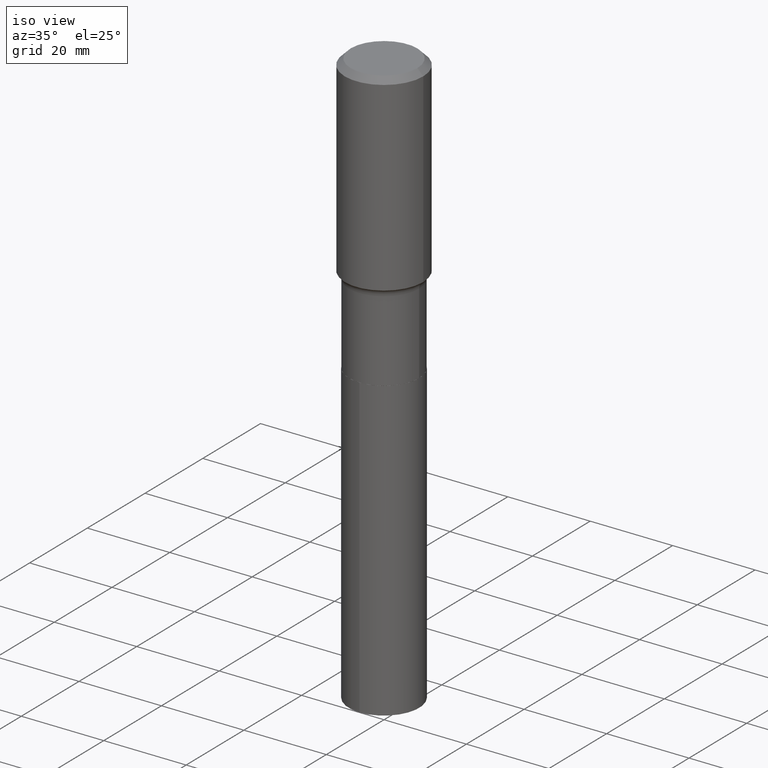
[diagram: clean part render]
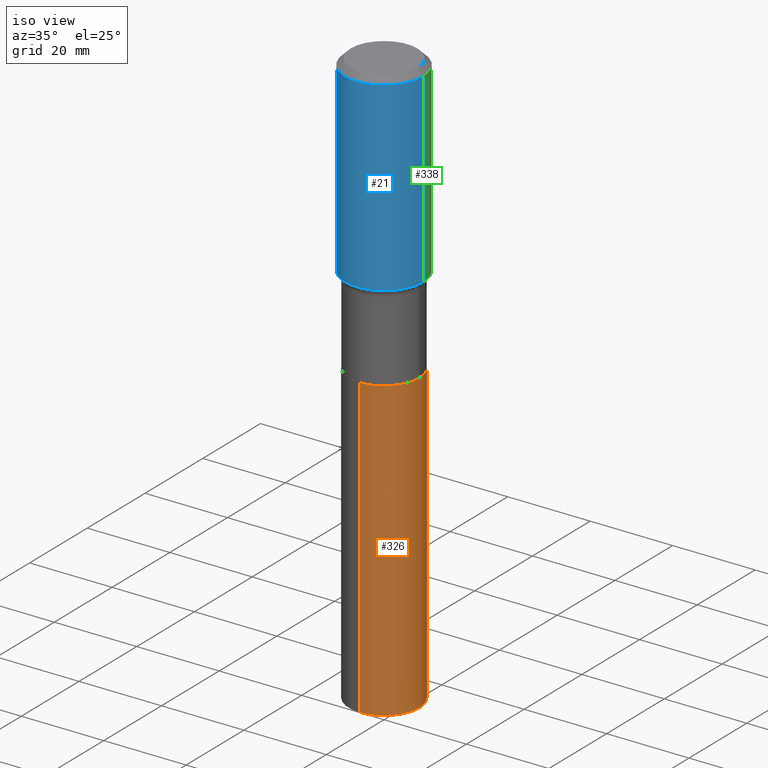
[diagram: same view with three faces highlighted in distinct colors, each labeled with its STEP entity id]
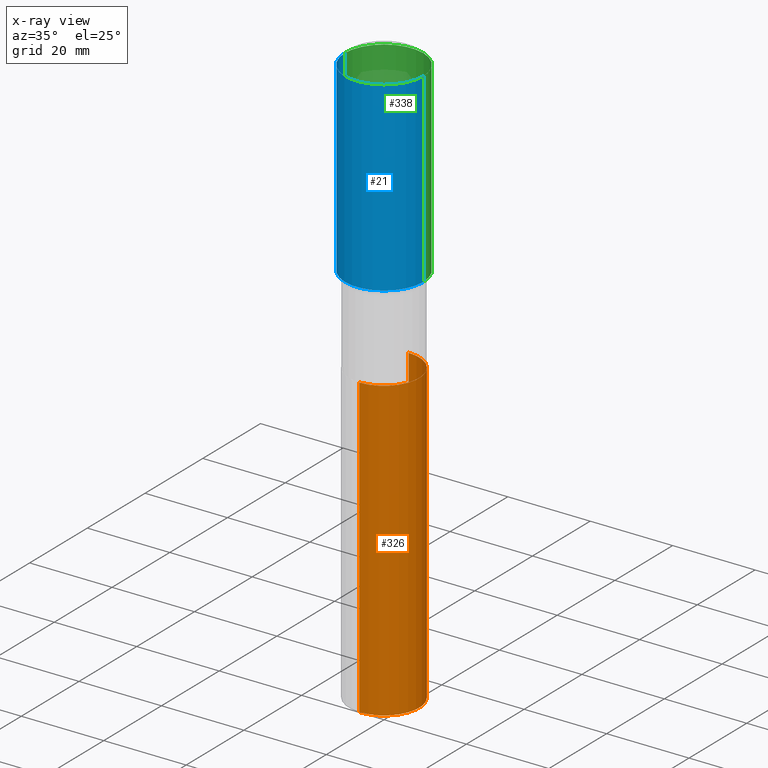
[diagram: x-ray of the same camera — body ghosted, the three highlighted faces saturated]
A machine part, iso view with three faces highlighted in distinct colors.
The next image is the same camera in x-ray (body ghosted, the three faces saturated) — at least one of them is partly hidden behind the body in this view.
Their STEP definitions:

[orange] entity #326 — the highlighted cylindrical surface (partial cylindrical patch) has radius 8.5331 mm, axis along (-0, 0, 1).
#9 = AXIS2_PLACEMENT_3D ( 'NONE', #368, #441, #215 ) ;
#10 = ORIENTED_EDGE ( 'NONE', *, *, #117, .T. ) ;
#14 = VERTEX_POINT ( 'NONE', #41 ) ;
#22 = CARTESIAN_POINT ( 'NONE',  ( 2.387068320786190079E-15, 0.3359499999999805975, -5.519075371876107639 ) ) ;
#37 = EDGE_CURVE ( 'NONE', #153, #14, #43, .T. ) ;
#41 = CARTESIAN_POINT ( 'NONE',  ( 2.387068320786192052E-15, 0.3359499999999906450, -2.671900000000001274 ) ) ;
#43 = LINE ( 'NONE', #103, #311 ) ;
#67 = CIRCLE ( 'NONE', #351, 0.3359500000000000264 ) ;
#91 = CYLINDRICAL_SURFACE ( 'NONE', #400, 0.3359500000000000264 ) ;
#103 = CARTESIAN_POINT ( 'NONE',  ( 2.387068320786121448E-15, 0.3359499999999906450, -2.671900000000001274 ) ) ;
#117 = EDGE_CURVE ( 'NONE', #457, #153, #331, .T. ) ;
#153 = VERTEX_POINT ( 'NONE', #22 ) ;
#157 = DIRECTION ( 'NONE',  ( -2.445293720551097683E-29, 3.491732071436344983E-15, 1.000000000000000000 ) ) ;
#162 = DIRECTION ( 'NONE',  ( -6.982962677686265133E-15, -1.000000000000000000, 3.252684022817994463E-15 ) ) ;
#210 = CARTESIAN_POINT ( 'NONE',  ( 6.534048103246065700E-29, -9.328888989255000747E-15, -2.671899999999999942 ) ) ;
#215 = DIRECTION ( 'NONE',  ( -6.982962677686265133E-15, -1.000000000000000000, 3.252684022817994463E-15 ) ) ;
#220 = CARTESIAN_POINT ( 'NONE',  ( 6.534048103246065700E-29, -9.328888989255000747E-15, -2.671899999999999942 ) ) ;
#236 = ORIENTED_EDGE ( 'NONE', *, *, #323, .F. ) ;
#246 = ORIENTED_EDGE ( 'NONE', *, *, #37, .T. ) ;
#258 = CARTESIAN_POINT ( 'NONE',  ( -2.345926311568635428E-15, -0.3359500000000093523, -2.671899999999999054 ) ) ;
#275 = ORIENTED_EDGE ( 'NONE', *, *, #365, .F. ) ;
#293 = CARTESIAN_POINT ( 'NONE',  ( -2.345926311568635428E-15, -0.3359500000000093523, -2.671899999999999054 ) ) ;
#308 = CARTESIAN_POINT ( 'NONE',  ( -2.345926311568565614E-15, -0.3359500000000191222, -5.519075371876105862 ) ) ;
#311 = VECTOR ( 'NONE', #492, 39.37007874015748143 ) ;
#321 = LINE ( 'NONE', #258, #437 ) ;
#322 = DIRECTION ( 'NONE',  ( -6.982962677686265133E-15, -1.000000000000000000, 3.252684022817994463E-15 ) ) ;
#323 = EDGE_CURVE ( 'NONE', #397, #14, #67, .T. ) ;
#325 = DIRECTION ( 'NONE',  ( -2.445293720551097683E-29, 3.491732071436345377E-15, 1.000000000000000000 ) ) ;
#326 = ADVANCED_FACE ( 'NONE', ( #467 ), #91, .T. ) ;
#331 = CIRCLE ( 'NONE', #9, 0.3359500000000000264 ) ;
#351 = AXIS2_PLACEMENT_3D ( 'NONE', #220, #157, #322 ) ;
#365 = EDGE_CURVE ( 'NONE', #457, #397, #321, .T. ) ;
#366 = DIRECTION ( 'NONE',  ( -2.445293720551097683E-29, 3.491732071436344983E-15, 1.000000000000000000 ) ) ;
#368 = CARTESIAN_POINT ( 'NONE',  ( 1.349622816140244701E-28, -1.927046254823850820E-14, -5.519075371876106750 ) ) ;
#397 = VERTEX_POINT ( 'NONE', #293 ) ;
#400 = AXIS2_PLACEMENT_3D ( 'NONE', #210, #366, #162 ) ;
#437 = VECTOR ( 'NONE', #325, 39.37007874015748143 ) ;
#439 = EDGE_LOOP ( 'NONE', ( #10, #246, #236, #275 ) ) ;
#441 = DIRECTION ( 'NONE',  ( -2.445293720551097683E-29, 3.491732071436344983E-15, 1.000000000000000000 ) ) ;
#457 = VERTEX_POINT ( 'NONE', #308 ) ;
#467 = FACE_OUTER_BOUND ( 'NONE', #439, .T. ) ;
#492 = DIRECTION ( 'NONE',  ( -2.445293720551097683E-29, 3.491732071436345377E-15, 1.000000000000000000 ) ) ;

[blue] entity #21 — the highlighted cylindrical surface (partial cylindrical patch) has radius 9.525 mm, axis along (-0, 0, 1).
#8 = EDGE_CURVE ( 'NONE', #392, #299, #445, .T. ) ;
#16 = AXIS2_PLACEMENT_3D ( 'NONE', #230, #385, #189 ) ;
#21 = ADVANCED_FACE ( 'NONE', ( #231 ), #302, .T. ) ;
#69 = EDGE_CURVE ( 'NONE', #299, #116, #320, .T. ) ;
#70 = ORIENTED_EDGE ( 'NONE', *, *, #69, .F. ) ;
#80 = EDGE_CURVE ( 'NONE', #392, #147, #300, .T. ) ;
#83 = AXIS2_PLACEMENT_3D ( 'NONE', #394, #198, #347 ) ;
#116 = VERTEX_POINT ( 'NONE', #163 ) ;
#118 = ORIENTED_EDGE ( 'NONE', *, *, #478, .T. ) ;
#123 = CARTESIAN_POINT ( 'NONE',  ( -0.3750000000000003886, -3.730535895525183379E-15, -1.831621175653907807 ) ) ;
#147 = VERTEX_POINT ( 'NONE', #261 ) ;
#163 = CARTESIAN_POINT ( 'NONE',  ( 0.3750000000000000555, -2.815006829442278240E-15, -0.05625000000000032752 ) ) ;
#189 = DIRECTION ( 'NONE',  ( 1.000000000000000000, -6.982962677686265922E-15, 0.000000000000000000 ) ) ;
#193 = LINE ( 'NONE', #459, #226 ) ;
#198 = DIRECTION ( 'NONE',  ( -2.445468806185136597E-29, 3.491481338843145583E-15, 1.000000000000000000 ) ) ;
#206 = VECTOR ( 'NONE', #313, 39.37007874015748143 ) ;
#226 = VECTOR ( 'NONE', #239, 39.37007874015748143 ) ;
#228 = CARTESIAN_POINT ( 'NONE',  ( 0.000000000000000000, 0.000000000000000000, 0.000000000000000000 ) ) ;
#230 = CARTESIAN_POINT ( 'NONE',  ( 1.375576203479147498E-30, -1.963958253099280755E-16, -0.05625000000000032752 ) ) ;
#231 = FACE_OUTER_BOUND ( 'NONE', #428, .T. ) ;
#239 = DIRECTION ( 'NONE',  ( -2.445468806185136877E-29, 3.491481338843145188E-15, 1.000000000000000000 ) ) ;
#261 = CARTESIAN_POINT ( 'NONE',  ( 0.3750000000000003886, -9.013682158757916981E-15, -1.831621175653907807 ) ) ;
#281 = AXIS2_PLACEMENT_3D ( 'NONE', #228, #384, #340 ) ;
#299 = VERTEX_POINT ( 'NONE', #361 ) ;
#300 = CIRCLE ( 'NONE', #83, 0.3750000000000002776 ) ;
#302 = CYLINDRICAL_SURFACE ( 'NONE', #281, 0.3750000000000001665 ) ;
#307 = CARTESIAN_POINT ( 'NONE',  ( -0.3750000000000001665, 2.664535259100376880E-15, -1.844600658845590439E-29 ) ) ;
#313 = DIRECTION ( 'NONE',  ( -2.445468806185136877E-29, 3.491481338843145188E-15, 1.000000000000000000 ) ) ;
#320 = CIRCLE ( 'NONE', #16, 0.3750000000000000555 ) ;
#337 = ORIENTED_EDGE ( 'NONE', *, *, #80, .T. ) ;
#340 = DIRECTION ( 'NONE',  ( 1.000000000000000000, -6.982962677686266711E-15, 4.876176775795935793E-29 ) ) ;
#347 = DIRECTION ( 'NONE',  ( 1.000000000000000000, -6.982962677686267499E-15, 0.000000000000000000 ) ) ;
#361 = CARTESIAN_POINT ( 'NONE',  ( -0.3750000000000000555, -6.311982308673678540E-16, -0.05625000000000032752 ) ) ;
#384 = DIRECTION ( 'NONE',  ( -2.445468806185136597E-29, 3.491481338843145583E-15, 1.000000000000000000 ) ) ;
#385 = DIRECTION ( 'NONE',  ( -2.445468806185136597E-29, 3.491481338843145583E-15, 1.000000000000000000 ) ) ;
#392 = VERTEX_POINT ( 'NONE', #123 ) ;
#394 = CARTESIAN_POINT ( 'NONE',  ( 4.479172449809777762E-29, -6.395071154625561442E-15, -1.831621175653907807 ) ) ;
#428 = EDGE_LOOP ( 'NONE', ( #471, #337, #118, #70 ) ) ;
#445 = LINE ( 'NONE', #307, #206 ) ;
#459 = CARTESIAN_POINT ( 'NONE',  ( 0.3750000000000001665, -2.618611004132351200E-15, 1.828566290923476763E-29 ) ) ;
#471 = ORIENTED_EDGE ( 'NONE', *, *, #8, .F. ) ;
#478 = EDGE_CURVE ( 'NONE', #147, #116, #193, .T. ) ;

[green] entity #338 — the highlighted cylindrical surface (partial cylindrical patch) has radius 9.525 mm, axis along (-0, 0, 1).
#6 = EDGE_CURVE ( 'NONE', #147, #392, #443, .T. ) ;
#8 = EDGE_CURVE ( 'NONE', #392, #299, #445, .T. ) ;
#20 = ORIENTED_EDGE ( 'NONE', *, *, #152, .F. ) ;
#29 = CARTESIAN_POINT ( 'NONE',  ( 1.375576203479147498E-30, -1.963958253099280755E-16, -0.05625000000000032752 ) ) ;
#38 = FACE_OUTER_BOUND ( 'NONE', #211, .T. ) ;
#44 = AXIS2_PLACEMENT_3D ( 'NONE', #177, #180, #79 ) ;
#60 = ORIENTED_EDGE ( 'NONE', *, *, #6, .T. ) ;
#66 = CIRCLE ( 'NONE', #289, 0.3750000000000000555 ) ;
#79 = DIRECTION ( 'NONE',  ( 1.000000000000000000, -6.982962677686267499E-15, 0.000000000000000000 ) ) ;
#81 = CYLINDRICAL_SURFACE ( 'NONE', #464, 0.3750000000000001665 ) ;
#116 = VERTEX_POINT ( 'NONE', #163 ) ;
#123 = CARTESIAN_POINT ( 'NONE',  ( -0.3750000000000003886, -3.730535895525183379E-15, -1.831621175653907807 ) ) ;
#147 = VERTEX_POINT ( 'NONE', #261 ) ;
#152 = EDGE_CURVE ( 'NONE', #116, #299, #66, .T. ) ;
#163 = CARTESIAN_POINT ( 'NONE',  ( 0.3750000000000000555, -2.815006829442278240E-15, -0.05625000000000032752 ) ) ;
#172 = DIRECTION ( 'NONE',  ( 1.000000000000000000, -6.982962677686265922E-15, 0.000000000000000000 ) ) ;
#177 = CARTESIAN_POINT ( 'NONE',  ( 4.479172449809777762E-29, -6.395071154625561442E-15, -1.831621175653907807 ) ) ;
#180 = DIRECTION ( 'NONE',  ( -2.445468806185136597E-29, 3.491481338843145583E-15, 1.000000000000000000 ) ) ;
#188 = DIRECTION ( 'NONE',  ( 1.000000000000000000, -6.982962677686266711E-15, 4.876176775795935793E-29 ) ) ;
#193 = LINE ( 'NONE', #459, #226 ) ;
#201 = ORIENTED_EDGE ( 'NONE', *, *, #8, .T. ) ;
#206 = VECTOR ( 'NONE', #313, 39.37007874015748143 ) ;
#211 = EDGE_LOOP ( 'NONE', ( #60, #201, #20, #423 ) ) ;
#226 = VECTOR ( 'NONE', #239, 39.37007874015748143 ) ;
#239 = DIRECTION ( 'NONE',  ( -2.445468806185136877E-29, 3.491481338843145188E-15, 1.000000000000000000 ) ) ;
#261 = CARTESIAN_POINT ( 'NONE',  ( 0.3750000000000003886, -9.013682158757916981E-15, -1.831621175653907807 ) ) ;
#289 = AXIS2_PLACEMENT_3D ( 'NONE', #29, #470, #172 ) ;
#299 = VERTEX_POINT ( 'NONE', #361 ) ;
#307 = CARTESIAN_POINT ( 'NONE',  ( -0.3750000000000001665, 2.664535259100376880E-15, -1.844600658845590439E-29 ) ) ;
#313 = DIRECTION ( 'NONE',  ( -2.445468806185136877E-29, 3.491481338843145188E-15, 1.000000000000000000 ) ) ;
#314 = CARTESIAN_POINT ( 'NONE',  ( 0.000000000000000000, 0.000000000000000000, 0.000000000000000000 ) ) ;
#338 = ADVANCED_FACE ( 'NONE', ( #38 ), #81, .T. ) ;
#361 = CARTESIAN_POINT ( 'NONE',  ( -0.3750000000000000555, -6.311982308673678540E-16, -0.05625000000000032752 ) ) ;
#392 = VERTEX_POINT ( 'NONE', #123 ) ;
#423 = ORIENTED_EDGE ( 'NONE', *, *, #478, .F. ) ;
#424 = DIRECTION ( 'NONE',  ( -2.445468806185136597E-29, 3.491481338843145583E-15, 1.000000000000000000 ) ) ;
#443 = CIRCLE ( 'NONE', #44, 0.3750000000000002776 ) ;
#445 = LINE ( 'NONE', #307, #206 ) ;
#459 = CARTESIAN_POINT ( 'NONE',  ( 0.3750000000000001665, -2.618611004132351200E-15, 1.828566290923476763E-29 ) ) ;
#464 = AXIS2_PLACEMENT_3D ( 'NONE', #314, #424, #188 ) ;
#470 = DIRECTION ( 'NONE',  ( -2.445468806185136597E-29, 3.491481338843145583E-15, 1.000000000000000000 ) ) ;
#478 = EDGE_CURVE ( 'NONE', #147, #116, #193, .T. ) ;